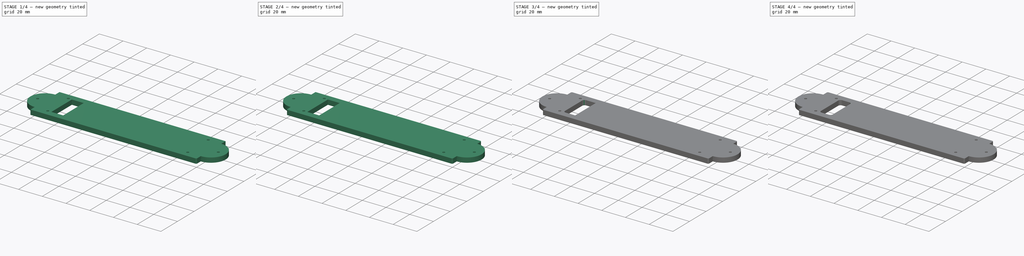
[diagram: build sequence overview — one tinted view per stage of 4, left to right]
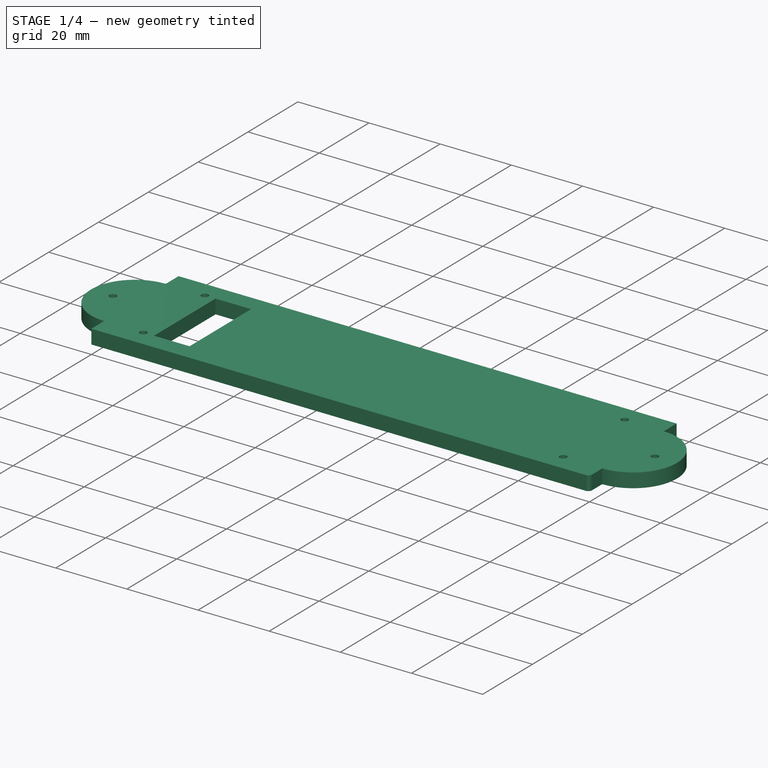
[diagram: stage 1 of 4 — iso view after this stage's code; geometry added in this stage tinted green]
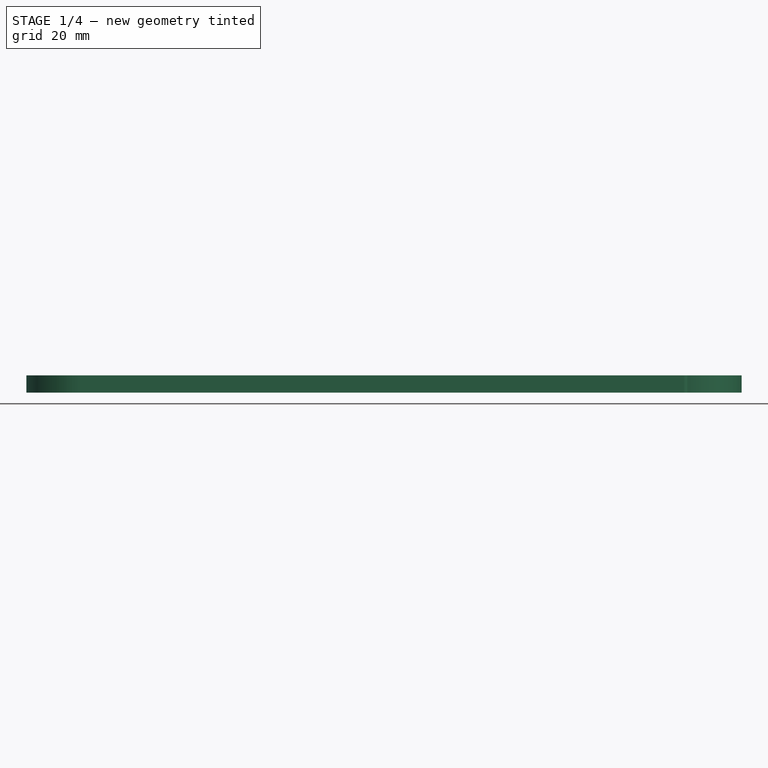
[diagram: stage 1 of 4 — front view after this stage's code; geometry added in this stage tinted green]
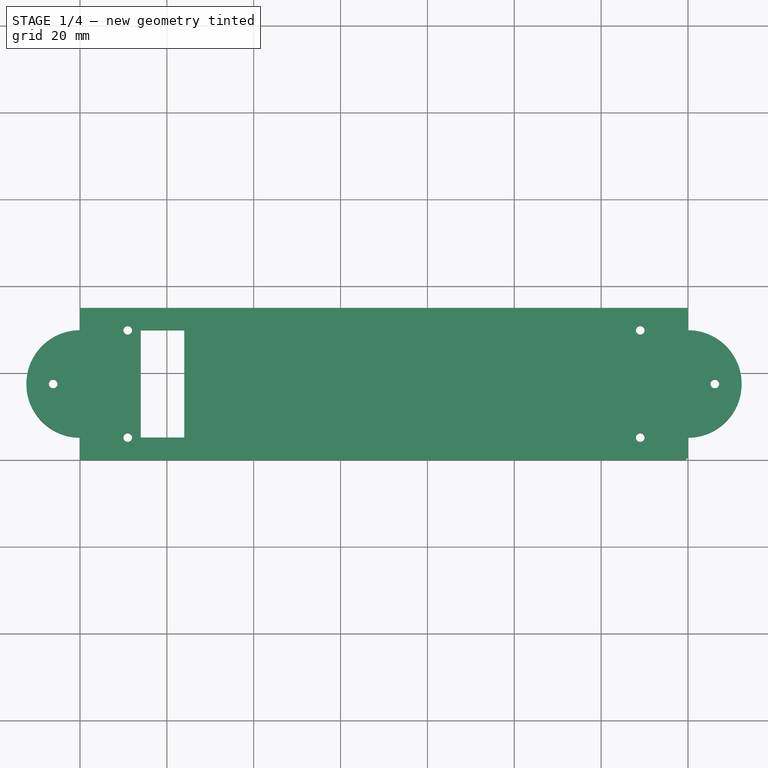
[diagram: stage 1 of 4 — top view after this stage's code; geometry added in this stage tinted green]
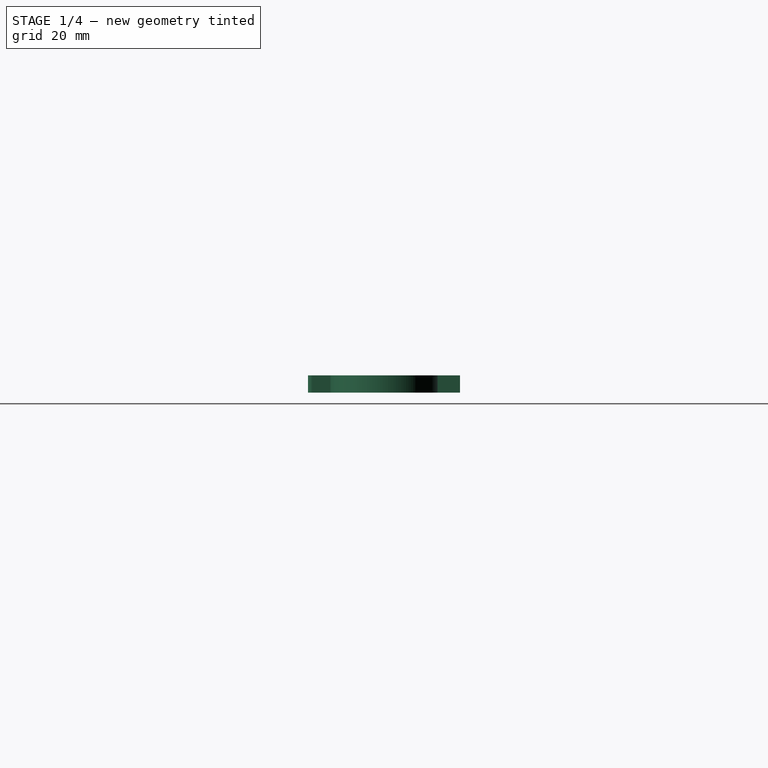
[diagram: stage 1 of 4 — right view after this stage's code; geometry added in this stage tinted green]
FCSTD DOCUMENT  (FreeCAD 0.14R3637 (Git))
Label: grundplatte
License: CC-BY 3.0
LicenseURL: http://creativecommons.org/licenses/by/3.0/
objects: PartDesign::Fillet×8, Sketcher::SketchObject×1, PartDesign::Pad×1
note: 11 computed .brp shape members not serialized (recipe doc carries the construction recipe); baked Part::Feature solids carry a one-line shape summary decoded from their .brp

FEATURE [Sketcher::SketchObject] Sketch  label="Base"
  sketch-geometry (40):
    g0: LineSegment StartX=0 StartY=0 StartZ=0 EndX=140 EndY=0 EndZ=0
    g1: LineSegment StartX=140 StartY=35 StartZ=0 EndX=0 EndY=35 EndZ=0
    g2: LineSegment [constr] StartX=0 StartY=29.85 StartZ=0 EndX=11 EndY=29.85 EndZ=0
    g3: LineSegment [constr] StartX=11 StartY=35 StartZ=0 EndX=11 EndY=29.85 EndZ=0
    g4: LineSegment [constr] StartX=0 StartY=5.15 StartZ=0 EndX=11 EndY=5.15 EndZ=0
    g5: LineSegment [constr] StartX=11 StartY=5.15 StartZ=0 EndX=11 EndY=29.85 EndZ=0
    g6: LineSegment [constr] StartX=11 StartY=5.15 StartZ=0 EndX=11 EndY=0 EndZ=0
    g7: LineSegment [constr] StartX=129 StartY=35 StartZ=0 EndX=129 EndY=29.85 EndZ=0
    g8: LineSegment [constr] StartX=129 StartY=29.85 StartZ=0 EndX=129 EndY=5.15 EndZ=0
    g9: LineSegment [constr] StartX=129 StartY=5.15 StartZ=0 EndX=129 EndY=0 EndZ=0
    g10: LineSegment [constr] StartX=129 StartY=29.85 StartZ=0 EndX=140 EndY=29.85 EndZ=0
    g11: LineSegment [constr] StartX=129 StartY=5.15 StartZ=0 EndX=140 EndY=5.15 EndZ=0
    g12: LineSegment [constr] StartX=11 StartY=29.85 StartZ=0 EndX=129 EndY=29.85 EndZ=0
    g13: Circle CenterX=129 CenterY=29.85 CenterZ=0 NormalX=0 NormalY=0 NormalZ=1 Radius=1
    g14: Circle CenterX=129 CenterY=5.15 CenterZ=0 NormalX=0 NormalY=0 NormalZ=1 Radius=1
    g15: Circle CenterX=11 CenterY=29.85 CenterZ=0 NormalX=0 NormalY=0 NormalZ=1 Radius=1
    g16: Circle CenterX=11 CenterY=5.15 CenterZ=0 NormalX=0 NormalY=0 NormalZ=1 Radius=1
    g17: LineSegment [constr] StartX=140 StartY=17.5 StartZ=0 EndX=140 EndY=5.15 EndZ=0
    g18: LineSegment StartX=0 StartY=35 StartZ=0 EndX=0 EndY=29.85 EndZ=0
    g19: LineSegment StartX=0 StartY=5.15 StartZ=0 EndX=0 EndY=0 EndZ=0
    g20: ArcOfCircle CenterX=0 CenterY=17.5 CenterZ=0 NormalX=0 NormalY=0 NormalZ=1 Radius=12.35 StartAngle=1.5708 EndAngle=4.71239
    g21: LineSegment [constr] StartX=140 StartY=29.85 StartZ=0 EndX=140 EndY=17.5 EndZ=0
    g22: LineSegment StartX=140 StartY=35 StartZ=0 EndX=140 EndY=29.85 EndZ=0
    g23: LineSegment StartX=140 StartY=5.15 StartZ=0 EndX=140 EndY=0 EndZ=0
    g24: ArcOfCircle CenterX=140 CenterY=17.5 CenterZ=0 NormalX=0 NormalY=0 NormalZ=1 Radius=12.35 StartAngle=4.71239 EndAngle=7.85398
    g25: LineSegment [constr] StartX=0 StartY=17.5 StartZ=0 EndX=-6.175 EndY=17.5 EndZ=0
    g26: LineSegment [constr] StartX=-6.175 StartY=17.5 StartZ=0 EndX=-12.35 EndY=17.5 EndZ=0
    g27: Circle CenterX=-6.175 CenterY=17.5 CenterZ=0 NormalX=0 NormalY=0 NormalZ=1 Radius=1
    g28: LineSegment [constr] StartX=140 StartY=17.5 StartZ=0 EndX=146.175 EndY=17.5 EndZ=0
    g29: LineSegment [constr] StartX=146.175 StartY=17.5 StartZ=0 EndX=152.35 EndY=17.5 EndZ=0
    g30: Circle CenterX=146.175 CenterY=17.5 CenterZ=0 NormalX=0 NormalY=0 NormalZ=1 Radius=1
    g31: LineSegment [constr] StartX=0 StartY=29.85 StartZ=0 EndX=0 EndY=17.5 EndZ=0
    g32: LineSegment [constr] StartX=0 StartY=17.5 StartZ=0 EndX=0 EndY=5.15 EndZ=0
    g33: LineSegment [constr] StartX=14 StartY=29.85 StartZ=0 EndX=14 EndY=5.15 EndZ=0
    g34: LineSegment [constr] StartX=24 StartY=29.85 StartZ=0 EndX=24 EndY=5.15 EndZ=0
    g35: LineSegment [constr] StartX=11 StartY=5.15 StartZ=0 EndX=129 EndY=5.15 EndZ=0
    g36: LineSegment StartX=14 StartY=29.85 StartZ=0 EndX=24 EndY=29.85 EndZ=0
    g37: LineSegment StartX=24 StartY=29.85 StartZ=0 EndX=24 EndY=5.15 EndZ=0
    g38: LineSegment StartX=24 StartY=5.15 StartZ=0 EndX=14 EndY=5.15 EndZ=0
    g39: LineSegment StartX=14 StartY=5.15 StartZ=0 EndX=14 EndY=29.85 EndZ=0
  constraints (110):
    c: Horizontal(g0)
    c: Horizontal(g1)
    c: Coincident(g0,g-1)
    c: Coincident(g3,g2)
    c: Coincident(g4,g5)
    c: Vertical(g5)
    c: Coincident(g6,g4)
    c: Coincident(g5,g2)
    c: Vertical(g3)
    c: Vertical(g6)
    c: Horizontal(g4)
    c: Horizontal(g2)
    c: PointOnObject(g3,g1)
    c: PointOnObject(g6,g0)
    c: Equal(g3,g6)
    c: Coincident(g7,g8)
    c: Vertical(g8)
    c: Coincident(g8,g9)
    c: Coincident(g10,g7)
    c: Coincident(g8,g11)
    c: PointOnObject(g9,g0)
    c: PointOnObject(g7,g1)
    c: Equal(g7,g9)
    c: Horizontal(g10)
    c: Horizontal(g11)
    c: Vertical(g7)
    c: Vertical(g9)
    c: Coincident(g12,g2)
    c: Coincident(g12,g7)
    c: Horizontal(g12)
    c: DistanceX(g12) = 118
    c: DistanceY(g8) = -24.7
    c: Equal(g2,g10)
    c: Coincident(g13,g7)
    c: Coincident(g14,g8)
    c: Radius(g14) = 1
    c: Radius(g13) = 1
    c: Coincident(g15,g2)
    c: Coincident(g16,g4)
    c: Radius(g16) = 1
    c: Radius(g15) = 1
    c: Coincident(g17,g11)
    c: Coincident(g19,g4)
    c: Coincident(g19,g-1)
    c: Vertical(g19)
    c: Coincident(g18,g2)
    c: Vertical(g18)
    c: Coincident(g21,g10)
    c: Coincident(g17,g21)
    c: Equal(g21,g17)
    c: Vertical(g21)
    c: Vertical(g17)
    c: DistanceY(g1,g0) = -35
    c: Coincident(g23,g11)
    c: Coincident(g23,g0)
    c: Vertical(g23)
    c: Coincident(g22,g1)
    c: Coincident(g22,g10)
    c: Vertical(g22)
    c: Coincident(g20,g2)
    c: Coincident(g20,g4)
    c: Coincident(g24,g10)
    c: Coincident(g24,g11)
    c: Coincident(g24,g17)
    c: Coincident(g25,g26)
    c: PointOnObject(g26,g20)
    c: Equal(g26,g25)
    c: Horizontal(g26)
    c: Horizontal(g25)
    c: Coincident(g27,g25)
    c: Radius(g27) = 1
    c: Coincident(g28,g29)
    c: Coincident(g28,g17)
    c: PointOnObject(g29,g24)
    c: Equal(g29,g28)
    c: Parallel(g29,g28)
    c: Coincident(g30,g28)
    c: Radius(g30) = 1
    c: Coincident(g31,g2)
    c: Coincident(g32,g4)
    c: Coincident(g32,g31)
    c: Coincident(g32,g20)
    c: Coincident(g25,g20)
    c: Equal(g31,g32)
    c: Parallel(g32,g31)
    c: Perpendicular(g31,g2)
    c: Coincident(g1,g18)
    c: PointOnObject(g33,g12)
    c: PointOnObject(g34,g12)
    c: Vertical(g33)
    c: Vertical(g34)
    c: DistanceX(g2) = 11
    c: Coincident(g35,g4)
    c: Coincident(g35,g8)
    c: PointOnObject(g33,g35)
    c: PointOnObject(g34,g35)
    c: DistanceX(g4,g33) = 3
    c: DistanceX(g33,g34) = 10
    c: Coincident(g36,g37)
    c: Coincident(g37,g38)
    c: Coincident(g38,g39)
    c: Coincident(g39,g36)
    c: Horizontal(g36)
    c: Horizontal(g38)
    c: Vertical(g37)
    c: Vertical(g39)
    c: Coincident(g37,g34)
    c: Coincident(g38,g33)
    c: Coincident(g36,g34)
    c: Horizontal(g28)
FEATURE [PartDesign::Pad] Pad
  Length = 4
  Length2 = 100
  Sketch = -> Sketch
  Type = 0
FEATURE [PartDesign::Fillet] Fillet
  Base = -> Pad [Edge14]
  Radius = 1
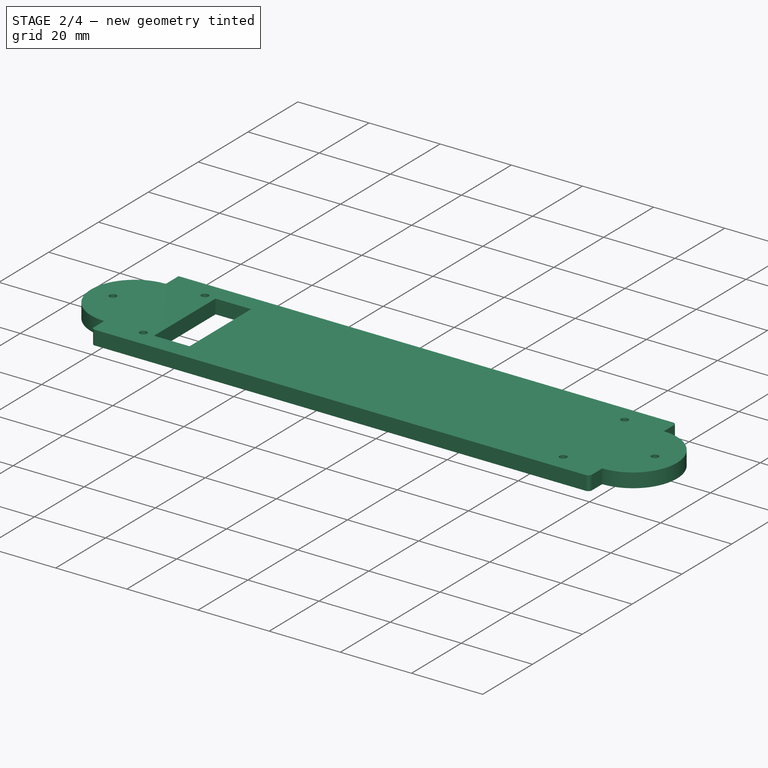
[diagram: stage 2 of 4 — iso view after this stage's code; geometry added in this stage tinted green]
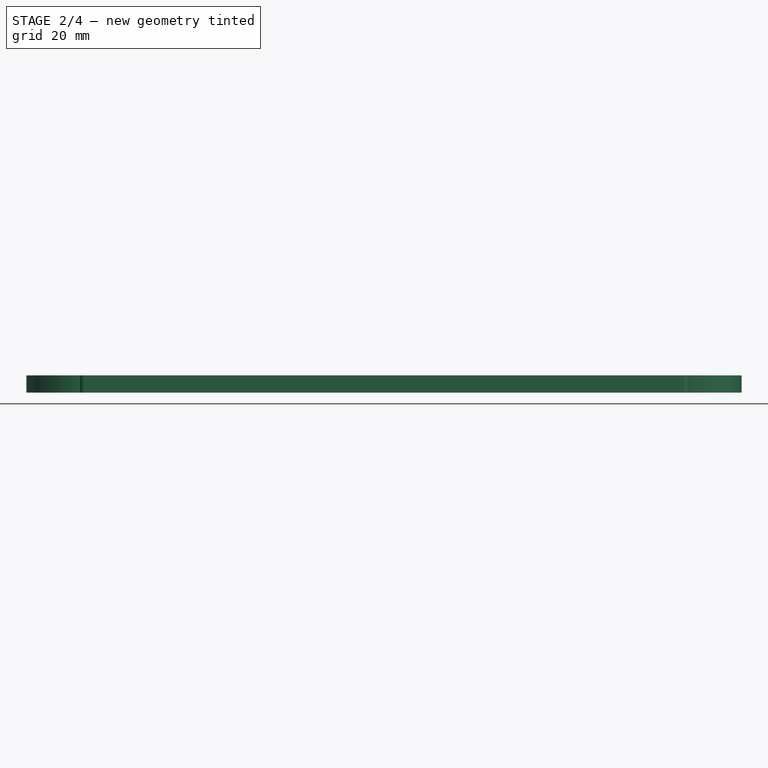
[diagram: stage 2 of 4 — front view after this stage's code; geometry added in this stage tinted green]
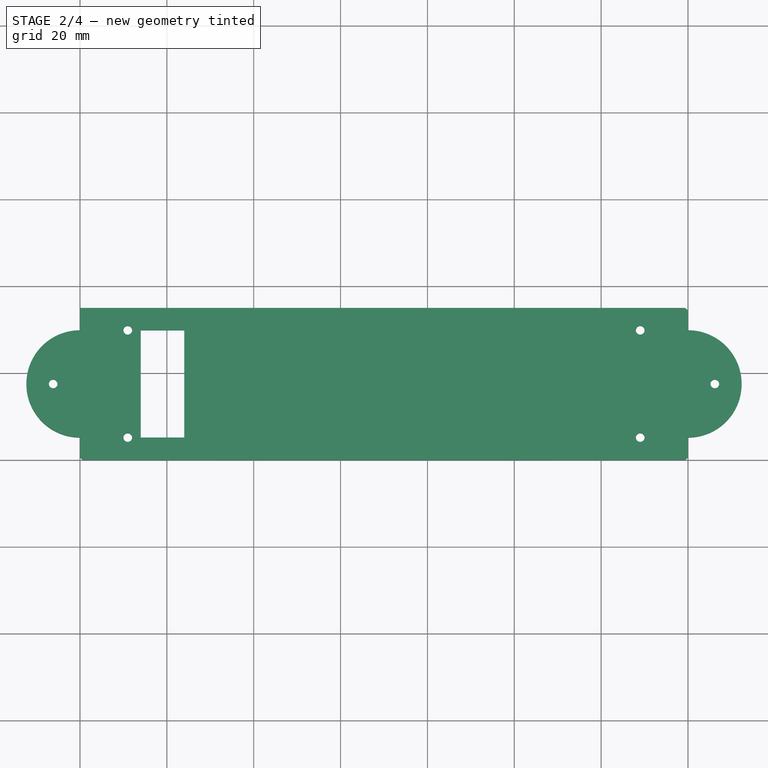
[diagram: stage 2 of 4 — top view after this stage's code; geometry added in this stage tinted green]
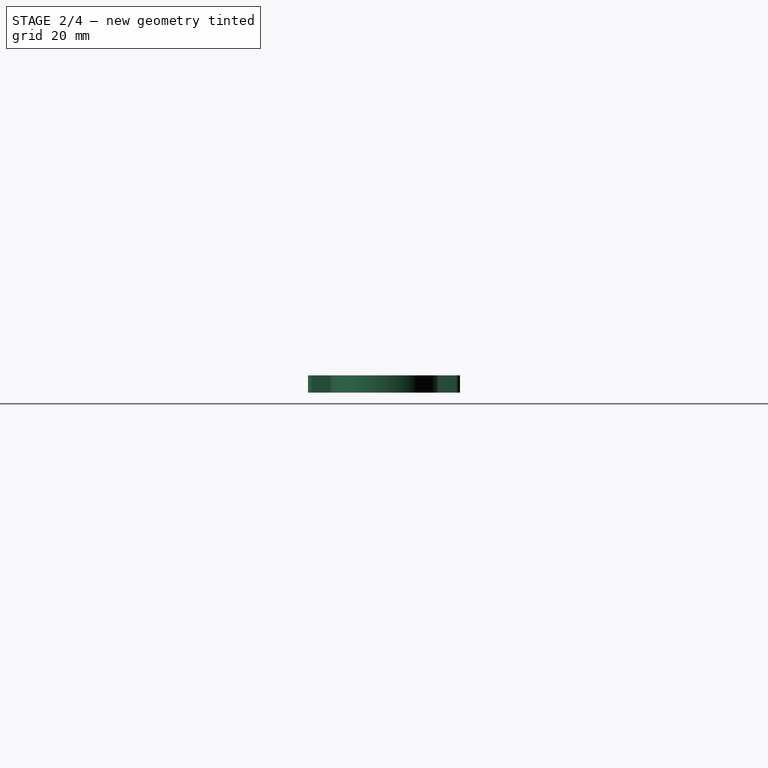
[diagram: stage 2 of 4 — right view after this stage's code; geometry added in this stage tinted green]
FEATURE [PartDesign::Fillet] Fillet001
  Base = -> Fillet [Edge3]
  Radius = 1
FEATURE [PartDesign::Fillet] Fillet002
  Base = -> Fillet001 [Edge50]
  Radius = 1
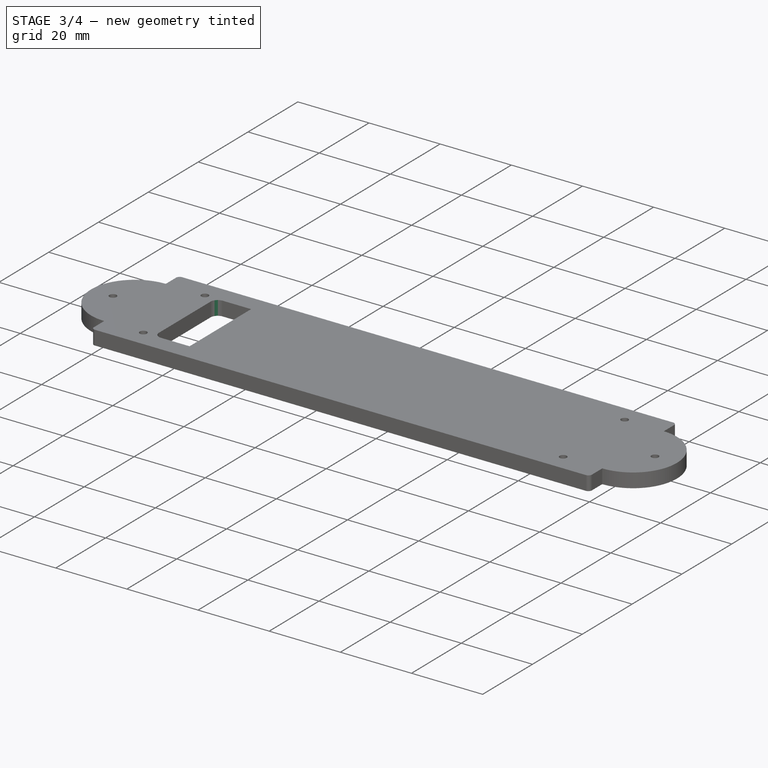
[diagram: stage 3 of 4 — iso view after this stage's code; geometry added in this stage tinted green]
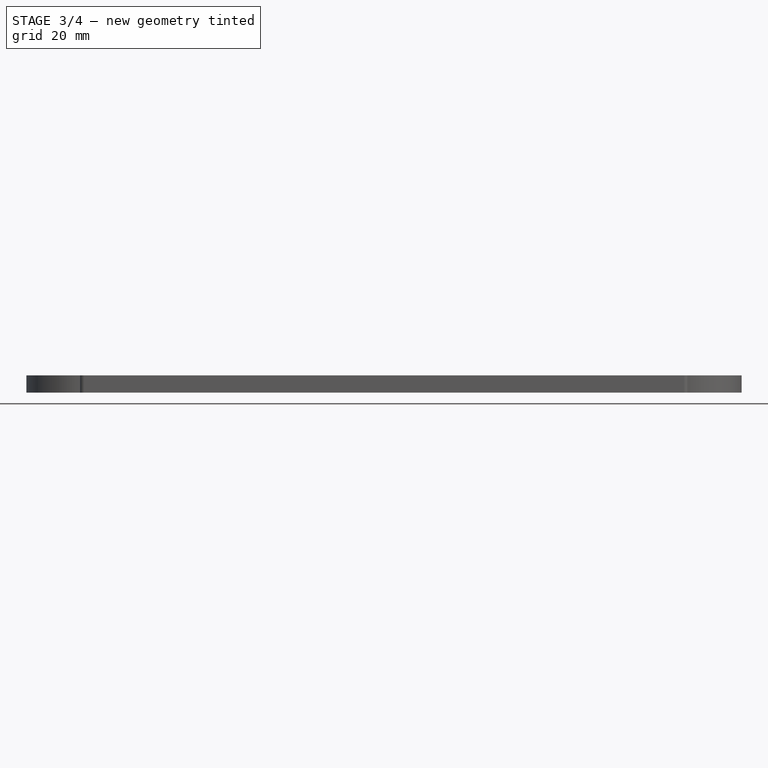
[diagram: stage 3 of 4 — front view after this stage's code; geometry added in this stage tinted green]
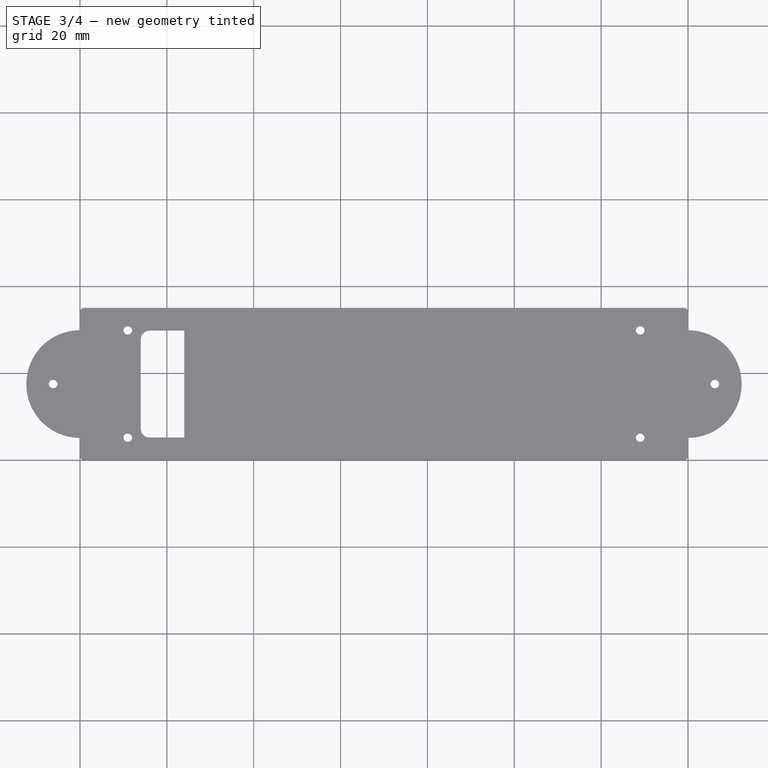
[diagram: stage 3 of 4 — top view after this stage's code; geometry added in this stage tinted green]
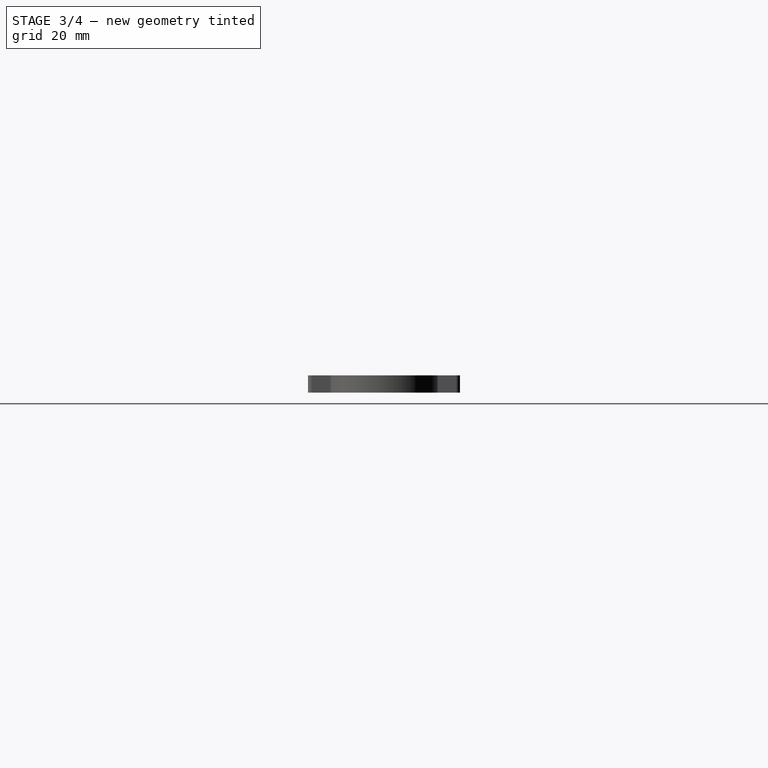
[diagram: stage 3 of 4 — right view after this stage's code; geometry added in this stage tinted green]
FEATURE [PartDesign::Fillet] Fillet003
  Base = -> Fillet002 [Edge29]
  Radius = 1
FEATURE [PartDesign::Fillet] Fillet004
  Base = -> Fillet003 [Edge47]
  Radius = 2
FEATURE [PartDesign::Fillet] Fillet005
  Base = -> Fillet004 [Edge31]
  Radius = 2
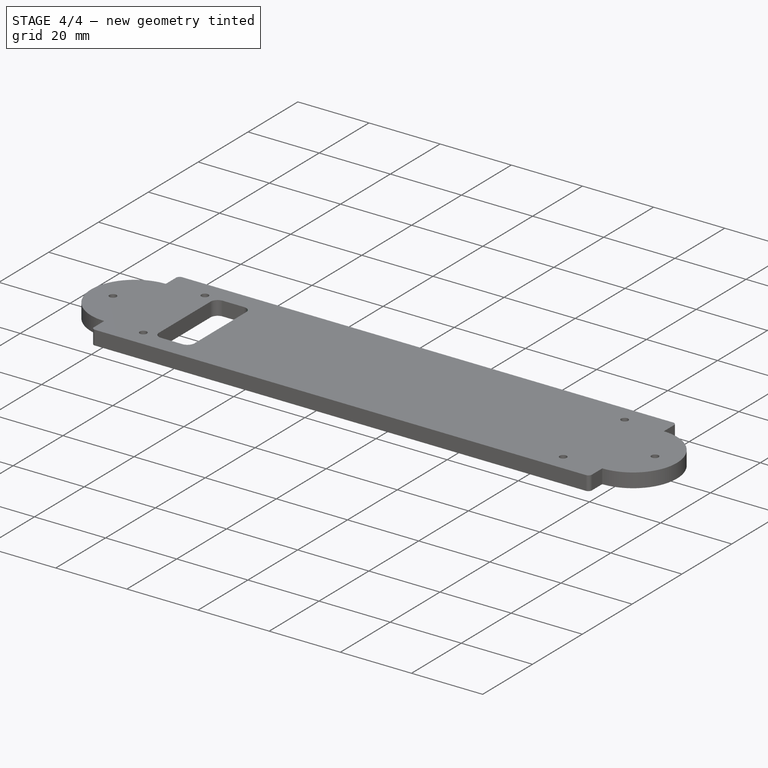
[diagram: stage 4 of 4 — iso view after this stage's code; geometry added in this stage tinted green]
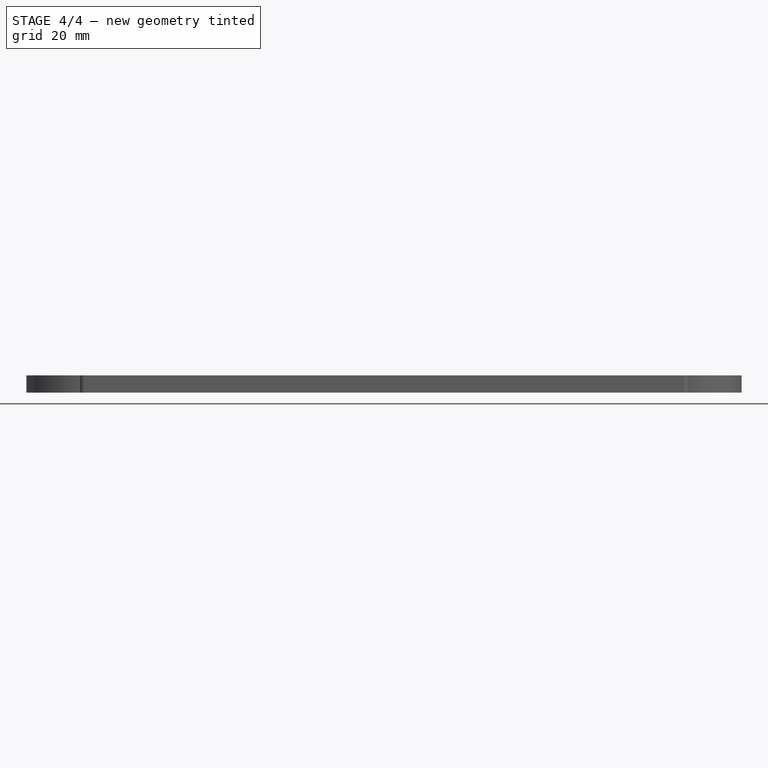
[diagram: stage 4 of 4 — front view after this stage's code; geometry added in this stage tinted green]
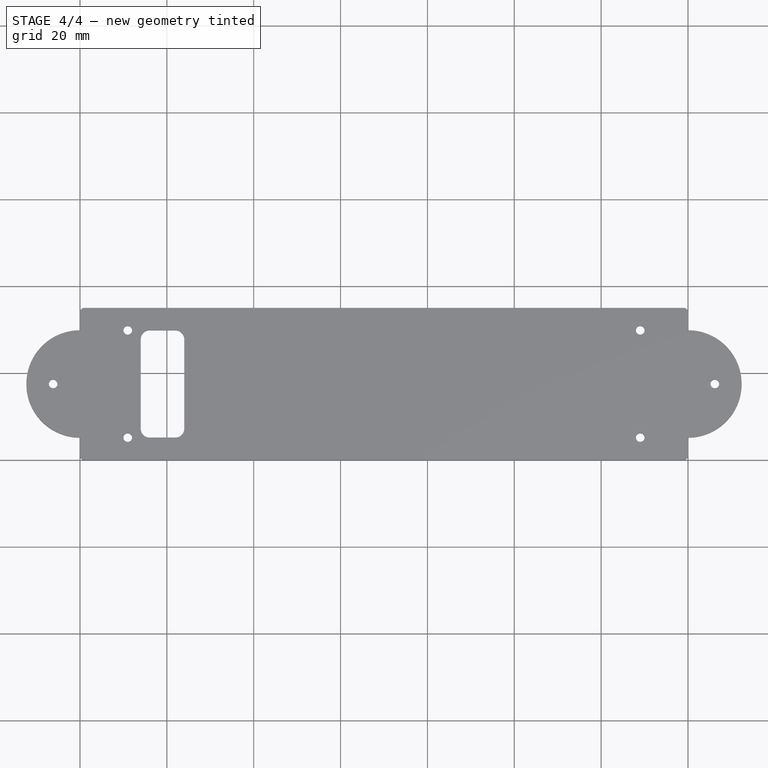
[diagram: stage 4 of 4 — top view after this stage's code; geometry added in this stage tinted green]
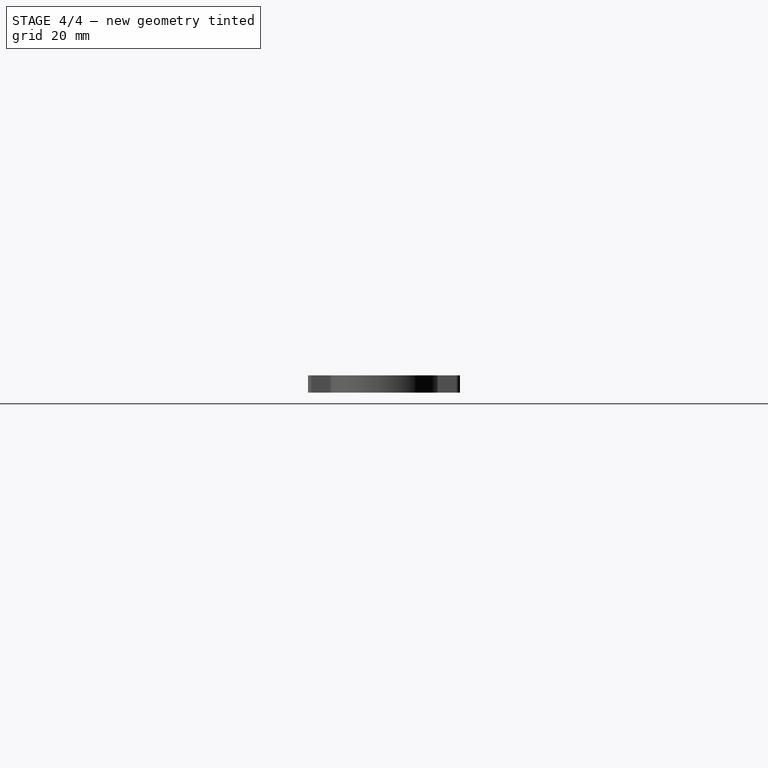
[diagram: stage 4 of 4 — right view after this stage's code; geometry added in this stage tinted green]
FEATURE [PartDesign::Fillet] Fillet006
  Base = -> Fillet005 [Edge32]
  Radius = 2
FEATURE [PartDesign::Fillet] Fillet007
  Base = -> Fillet006 [Edge33]
  Radius = 2
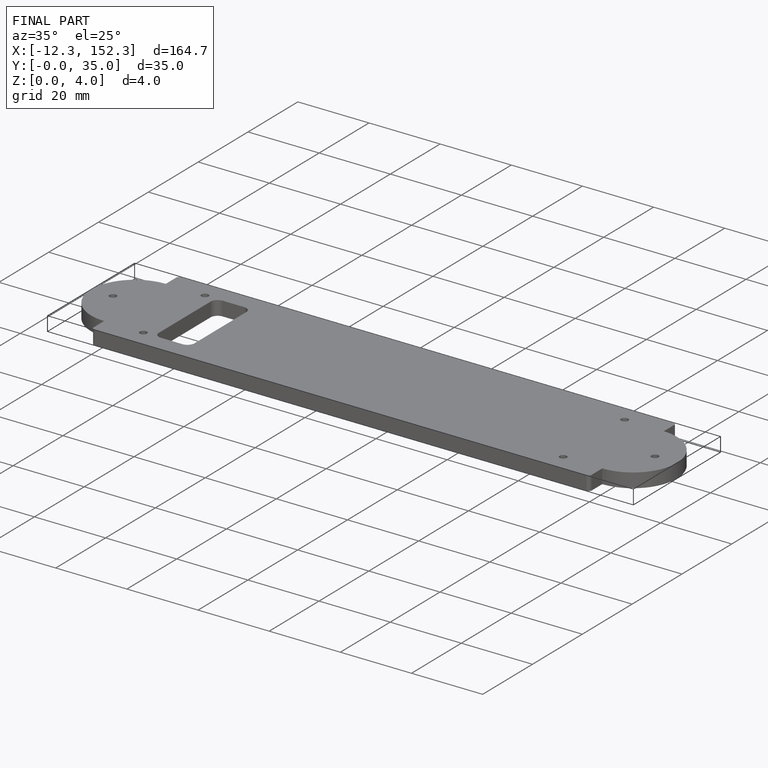
[diagram: finished part — iso view with bounding-box wireframe]
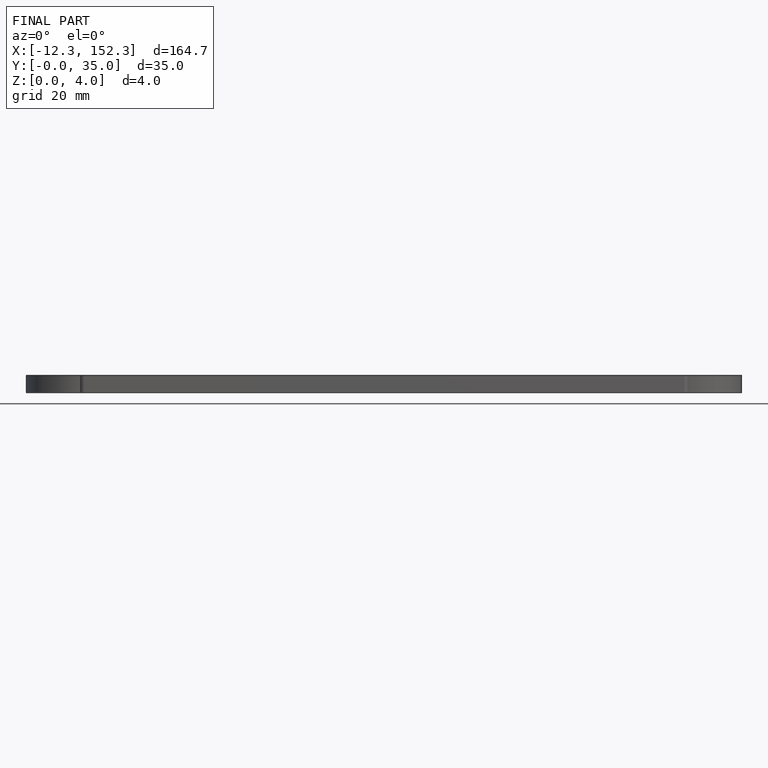
[diagram: finished part — front view with bounding-box wireframe]
